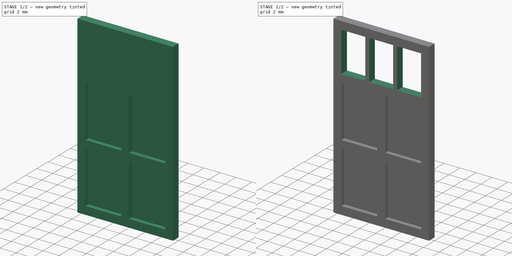
[diagram: build sequence overview — one tinted view per stage of 2, left to right]
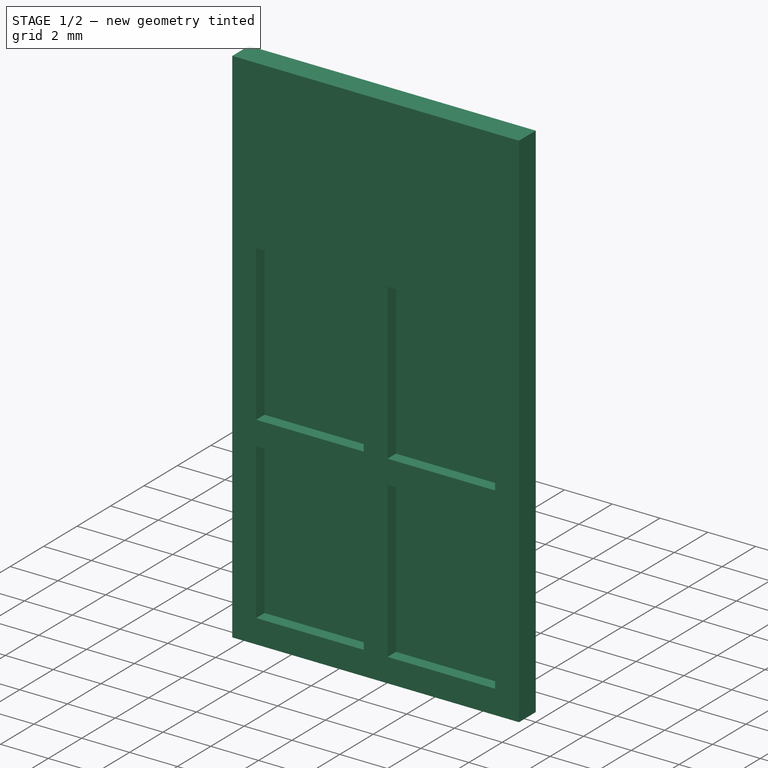
[diagram: stage 1 of 2 — iso view after this stage's code; geometry added in this stage tinted green]
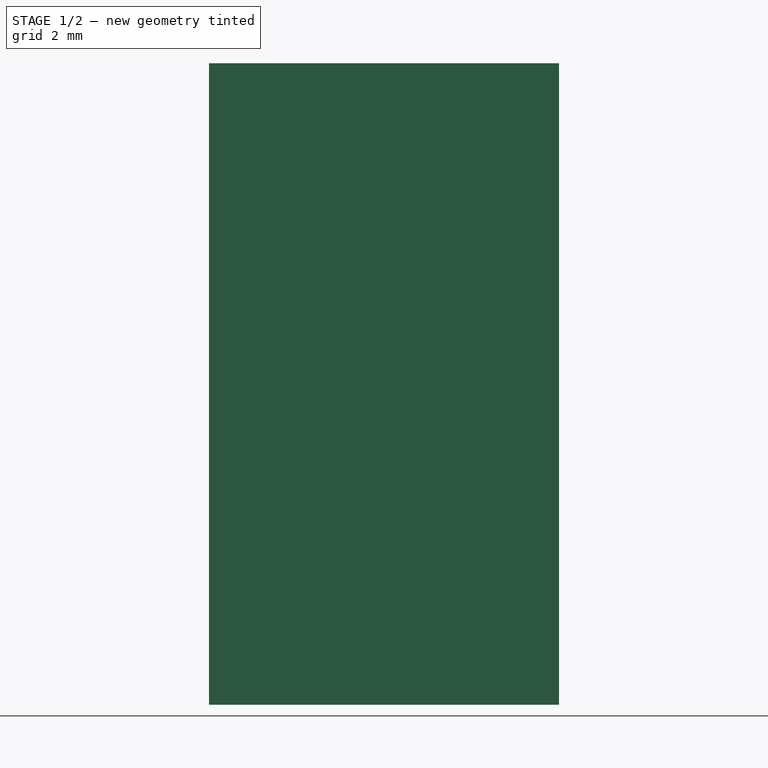
[diagram: stage 1 of 2 — front view after this stage's code; geometry added in this stage tinted green]
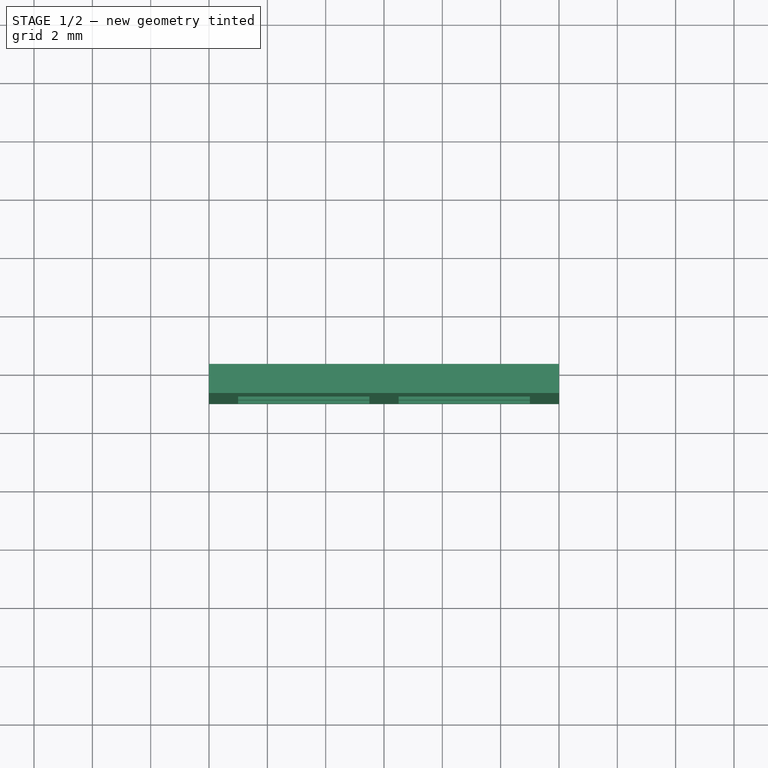
[diagram: stage 1 of 2 — top view after this stage's code; geometry added in this stage tinted green]
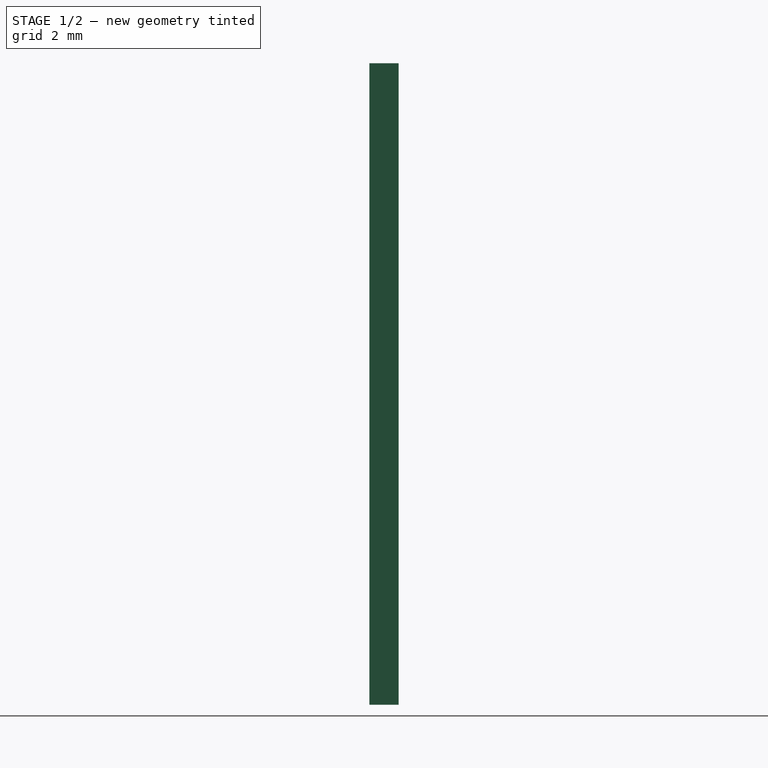
[diagram: stage 1 of 2 — right view after this stage's code; geometry added in this stage tinted green]
FCSTD DOCUMENT  (FreeCAD 0.20R29410 (Git))
Label: doors
License: All rights reserved
LicenseURL: http://en.wikipedia.org/wiki/All_rights_reserved
objects: Sketcher::SketchObject×3, PartDesign::Pocket×2, PartDesign::Pad×1, PartDesign::Body×1
note: 10 computed .brp shape members not serialized (recipe doc carries the construction recipe); baked Part::Feature solids carry a one-line shape summary decoded from their .brp

FEATURE [Sketcher::SketchObject] Sketch
  FullyConstrained = true
  MapMode = 5
  Placement = pos=(0,0,0) rot=(1,0,0;1.5708rad)
  Support = -> [XZ_Plane]
  sketch-geometry (6):
    g0: LineSegment StartX=-6 StartY=11 StartZ=0 EndX=6 EndY=11 EndZ=0
    g1: LineSegment StartX=6 StartY=11 StartZ=0 EndX=6 EndY=-11 EndZ=0
    g2: LineSegment StartX=6 StartY=-11 StartZ=0 EndX=-6 EndY=-11 EndZ=0
    g3: LineSegment StartX=-6 StartY=-11 StartZ=0 EndX=-6 EndY=11 EndZ=0
    g4: GeomPoint X=1e-16 Y=-11 Z=0
    g5: GeomPoint X=6 Y=0 Z=0
  constraints (14):
    c: Coincident(g0,g1)
    c: Coincident(g1,g2)
    c: Coincident(g2,g3)
    c: Coincident(g3,g0)
    c: Horizontal(g0)
    c: Horizontal(g2)
    c: Vertical(g1)
    c: Vertical(g3)
    c: DistanceX(g0,g0) = 12
    c: DistanceY(g3,g3) = 22
    c: PointOnObject(g4,g-2)
    c: PointOnObject(g5,g-1)
    c: Symmetric(g2,g2,g4)
    c: Symmetric(g1,g1,g5)
FEATURE [PartDesign::Pad] Pad
  Direction = (0,-1,2e-16)
  Length = 1
  Length2 = 10
  Placement = pos=(0,0,0) rot=(1,0,0;1.5708rad)
  Profile = -> Sketch
  ReferenceAxis = -> Sketch [N_Axis]
  Type = 0
FEATURE [Sketcher::SketchObject] Sketch001
  ExternalGeometry = -> [Pad]
  FullyConstrained = true
  MapMode = 5
  Placement = pos=(0,-1,2e-16) rot=(1,0,0;1.5708rad)
  Support = -> [Pad]
  sketch-geometry (16):
    g0: LineSegment StartX=-5 StartY=-3.5 StartZ=0 EndX=-0.5 EndY=-3.5 EndZ=0
    g1: LineSegment StartX=-0.5 StartY=-3.5 StartZ=0 EndX=-0.5 EndY=-10 EndZ=0
    g2: LineSegment StartX=-0.5 StartY=-10 StartZ=0 EndX=-5 EndY=-10 EndZ=0
    g3: LineSegment StartX=-5 StartY=-10 StartZ=0 EndX=-5 EndY=-3.5 EndZ=0
    g4: LineSegment StartX=0.5 StartY=-3.5 StartZ=0 EndX=5 EndY=-3.5 EndZ=0
    g5: LineSegment StartX=5 StartY=-3.5 StartZ=0 EndX=5 EndY=-10 EndZ=0
    g6: LineSegment StartX=5 StartY=-10 StartZ=0 EndX=0.5 EndY=-10 EndZ=0
    g7: LineSegment StartX=0.5 StartY=-10 StartZ=0 EndX=0.5 EndY=-3.5 EndZ=0
    g8: LineSegment StartX=-5 StartY=4 StartZ=0 EndX=-0.5 EndY=4 EndZ=0
    g9: LineSegment StartX=-0.5 StartY=4 StartZ=0 EndX=-0.5 EndY=-2.5 EndZ=0
    g10: LineSegment StartX=-0.5 StartY=-2.5 StartZ=0 EndX=-5 EndY=-2.5 EndZ=0
    g11: LineSegment StartX=-5 StartY=-2.5 StartZ=0 EndX=-5 EndY=4 EndZ=0
    g12: LineSegment StartX=0.5 StartY=4 StartZ=0 EndX=5 EndY=4 EndZ=0
    g13: LineSegment StartX=5 StartY=4 StartZ=0 EndX=5 EndY=-2.5 EndZ=0
    g14: LineSegment StartX=5 StartY=-2.5 StartZ=0 EndX=0.5 EndY=-2.5 EndZ=0
    g15: LineSegment StartX=0.5 StartY=-2.5 StartZ=0 EndX=0.5 EndY=4 EndZ=0
  constraints (48):
    c: Coincident(g0,g1)
    c: Coincident(g1,g2)
    c: Coincident(g2,g3)
    c: Coincident(g3,g0)
    c: Horizontal(g0)
    c: Horizontal(g2)
    c: Vertical(g1)
    c: Vertical(g3)
    c: Coincident(g4,g5)
    c: Coincident(g5,g6)
    c: Coincident(g6,g7)
    c: Coincident(g7,g4)
    c: Horizontal(g4)
    c: Horizontal(g6)
    c: Vertical(g5)
    c: Vertical(g7)
    c: Coincident(g8,g9)
    c: Coincident(g9,g10)
    c: Coincident(g10,g11)
    c: Coincident(g11,g8)
    c: Horizontal(g8)
    c: Horizontal(g10)
    c: Vertical(g9)
    c: Vertical(g11)
    c: Coincident(g12,g13)
    c: Coincident(g13,g14)
    c: Coincident(g14,g15)
    c: Coincident(g15,g12)
    c: Horizontal(g12)
    c: Horizontal(g14)
    c: Vertical(g13)
    c: Vertical(g15)
    c: Equal(g11,g3)
    c: Equal(g3,g7)
    c: Equal(g7,g15)
    c: Equal(g8,g12)
    c: Equal(g12,g0)
    c: Equal(g0,g4)
    c: DistanceX(g-6,g2) = 1
    c: DistanceX(g5,g-6) = 1
    c: DistanceY(g0,g10) = 1
    c: DistanceX(g9,g14) = 1
    c: Vertical(g0,g9)
    c: Vertical(g4,g14)
    c: Horizontal(g14,g9)
    c: Horizontal(g4,g0)
    c: DistanceY(g-6,g2) = 1
    c: DistanceY(g8,g-4) = 7
FEATURE [PartDesign::Pocket] Pocket
  BaseFeature = -> Pad
  Direction = (0,1,-2e-16)
  Length = 0.5
  Length2 = 5
  Placement = pos=(0,0,0) rot=(1,0,0;1.5708rad)
  Profile = -> Sketch001
  ReferenceAxis = -> Sketch001 [N_Axis]
  Type = 0
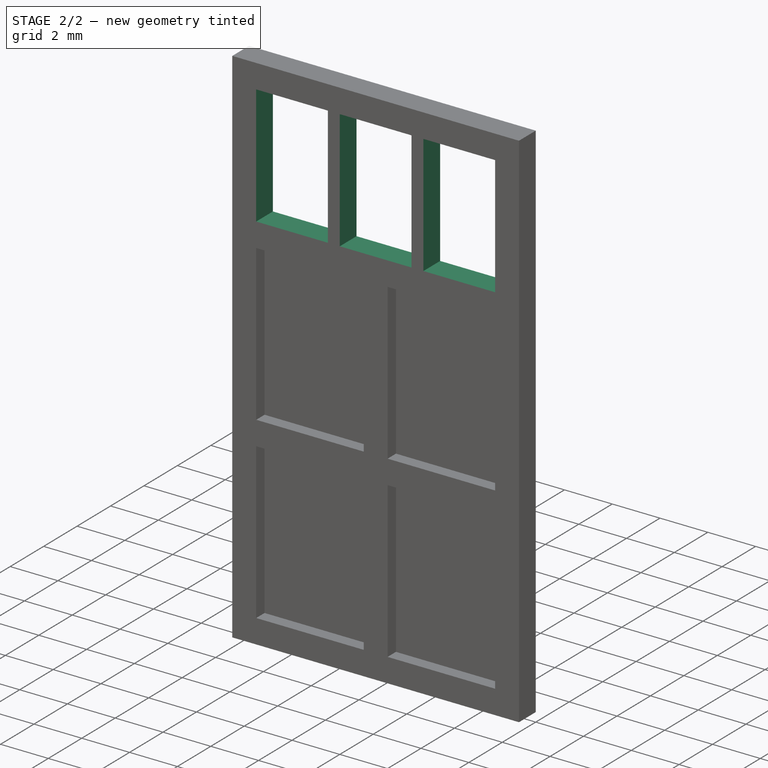
[diagram: stage 2 of 2 — iso view after this stage's code; geometry added in this stage tinted green]
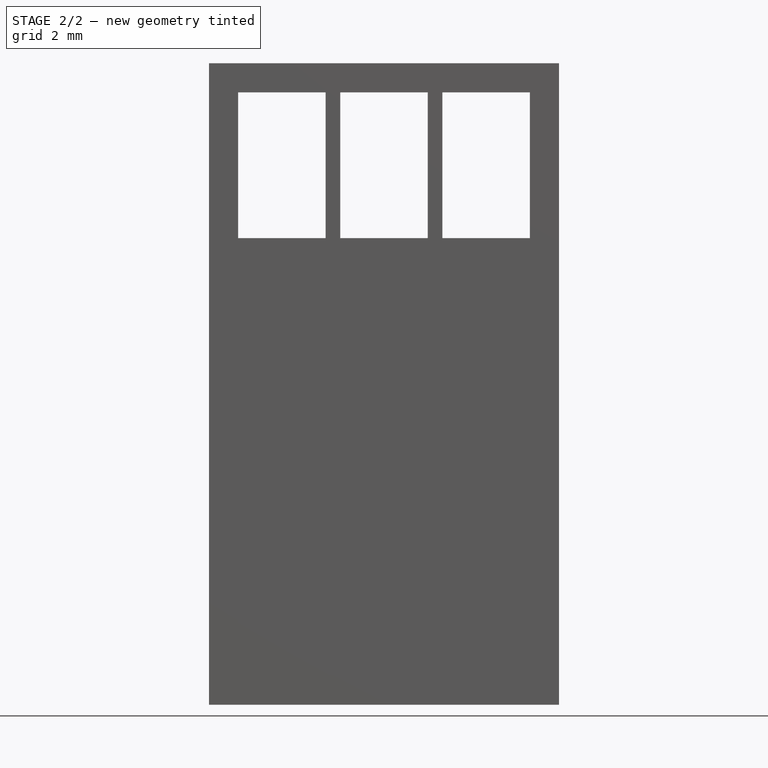
[diagram: stage 2 of 2 — front view after this stage's code; geometry added in this stage tinted green]
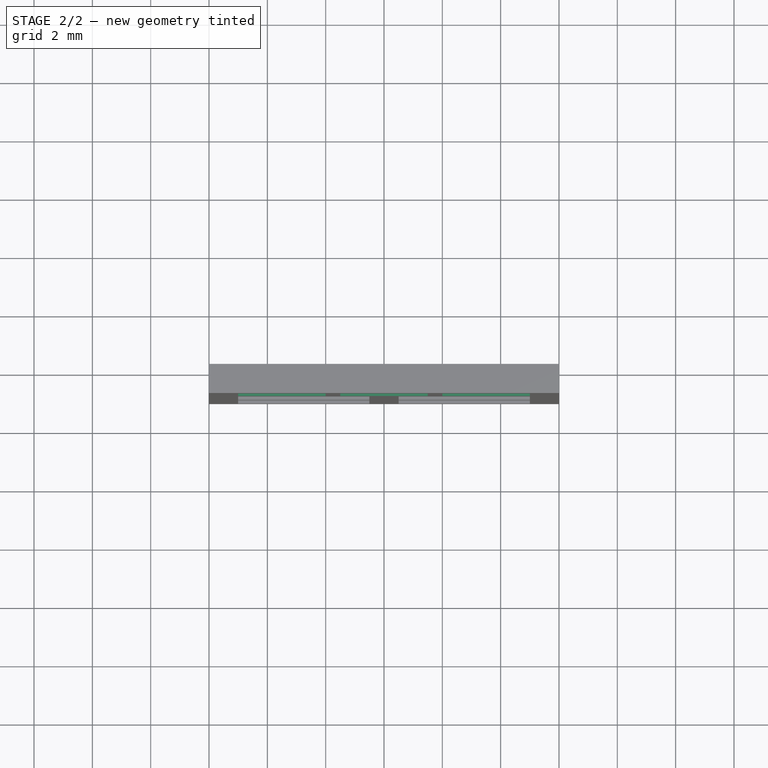
[diagram: stage 2 of 2 — top view after this stage's code; geometry added in this stage tinted green]
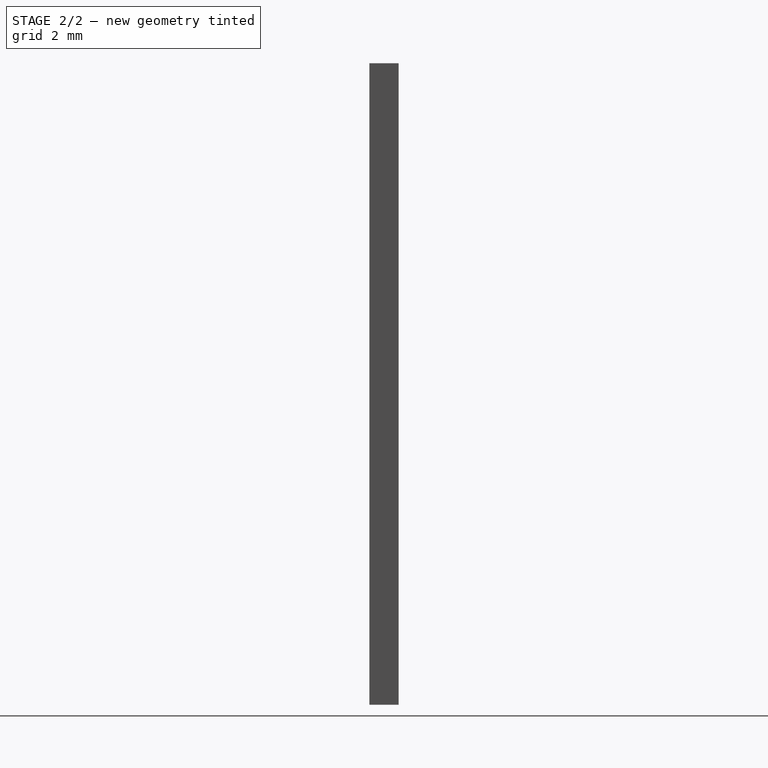
[diagram: stage 2 of 2 — right view after this stage's code; geometry added in this stage tinted green]
FEATURE [Sketcher::SketchObject] Sketch002
  ExternalGeometry = -> [Pocket]
  FullyConstrained = true
  MapMode = 5
  Placement = pos=(0,-1,2e-16) rot=(1,0,0;1.5708rad)
  Support = -> [Pocket]
  sketch-geometry (13):
    g0: LineSegment StartX=-5 StartY=10 StartZ=0 EndX=-2 EndY=10 EndZ=0
    g1: LineSegment StartX=-2 StartY=10 StartZ=0 EndX=-2 EndY=5 EndZ=0
    g2: LineSegment StartX=-2 StartY=5 StartZ=0 EndX=-5 EndY=5 EndZ=0
    g3: LineSegment StartX=-5 StartY=5 StartZ=0 EndX=-5 EndY=10 EndZ=0
    g4: LineSegment StartX=-1.5 StartY=10 StartZ=0 EndX=1.5 EndY=10 EndZ=0
    g5: LineSegment StartX=1.5 StartY=10 StartZ=0 EndX=1.5 EndY=5 EndZ=0
    g6: LineSegment StartX=1.5 StartY=5 StartZ=0 EndX=-1.5 EndY=5 EndZ=0
    g7: LineSegment StartX=-1.5 StartY=5 StartZ=0 EndX=-1.5 EndY=10 EndZ=0
    g8: LineSegment StartX=2 StartY=10 StartZ=0 EndX=5 EndY=10 EndZ=0
    g9: LineSegment StartX=5 StartY=10 StartZ=0 EndX=5 EndY=5 EndZ=0
    g10: LineSegment StartX=5 StartY=5 StartZ=0 EndX=2 EndY=5 EndZ=0
    g11: LineSegment StartX=2 StartY=5 StartZ=0 EndX=2 EndY=10 EndZ=0
    g12: GeomPoint X=0 Y=10 Z=0
  constraints (37):
    c: Coincident(g0,g1)
    c: Coincident(g1,g2)
    c: Coincident(g2,g3)
    c: Coincident(g3,g0)
    c: Horizontal(g0)
    c: Horizontal(g2)
    c: Vertical(g1)
    c: Vertical(g3)
    c: Coincident(g4,g5)
    c: Coincident(g5,g6)
    c: Coincident(g6,g7)
    c: Coincident(g7,g4)
    c: Horizontal(g4)
    c: Horizontal(g6)
    c: Vertical(g5)
    c: Vertical(g7)
    c: Coincident(g8,g9)
    c: Coincident(g9,g10)
    c: Coincident(g10,g11)
    c: Coincident(g11,g8)
    c: Horizontal(g8)
    c: Horizontal(g10)
    c: Vertical(g9)
    c: Vertical(g11)
    c: Equal(g3,g7)
    c: Equal(g7,g11)
    c: Horizontal(g0,g4)
    c: Horizontal(g8,g4)
    c: DistanceX(g0,g4) = 0.5
    c: DistanceY(g0,g-3) = 1
    c: DistanceX(g-3,g0) = 1
    c: DistanceY(g-4,g2) = 1
    c: Vertical(g9,g-5)
    c: PointOnObject(g12,g-2)
    c: Equal(g0,g4)
    c: Equal(g0,g8)
    c: Symmetric(g4,g4,g12)
FEATURE [PartDesign::Pocket] Pocket001  label="small door"
  BaseFeature = -> Pocket
  Direction = (0,1,-2e-16)
  Length = 5
  Length2 = 5
  Placement = pos=(0,0,0) rot=(1,0,0;1.5708rad)
  Profile = -> Sketch002
  ReferenceAxis = -> Sketch002 [N_Axis]
  Type = 0
FEATURE [PartDesign::Body] Body
  Group = -> [Sketch,Pad,Sketch001,Pocket,Sketch002,Pocket001]
  Origin = -> Origin
  Tip = -> Pocket001
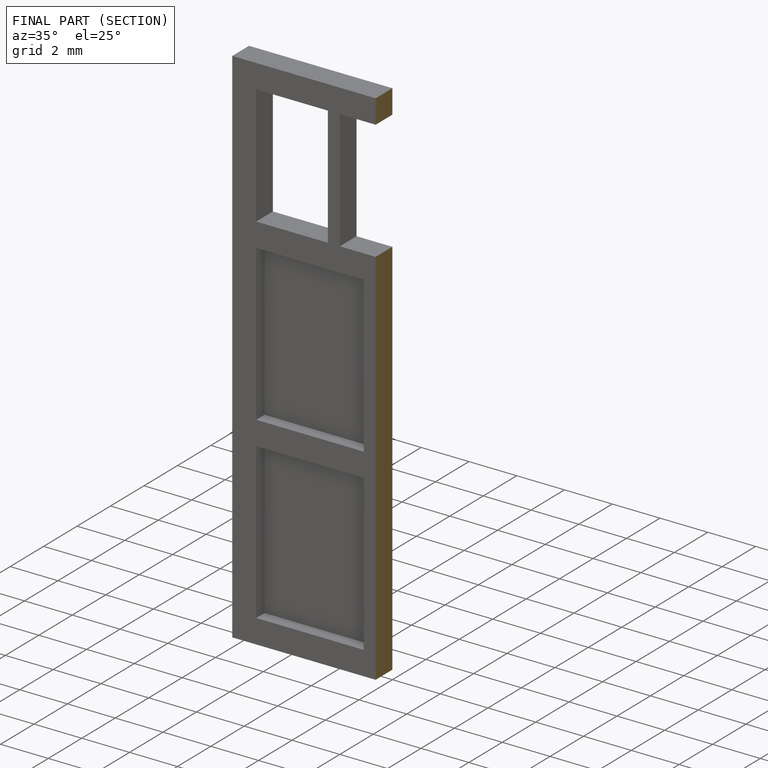
[diagram: finished part — half-section view (interior)]
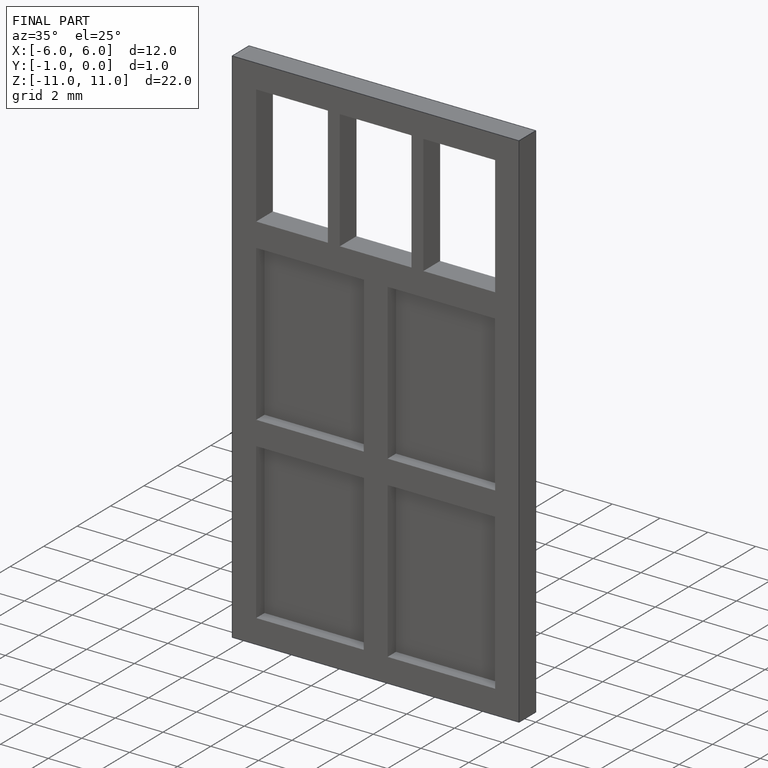
[diagram: finished part — iso view with bounding-box wireframe]
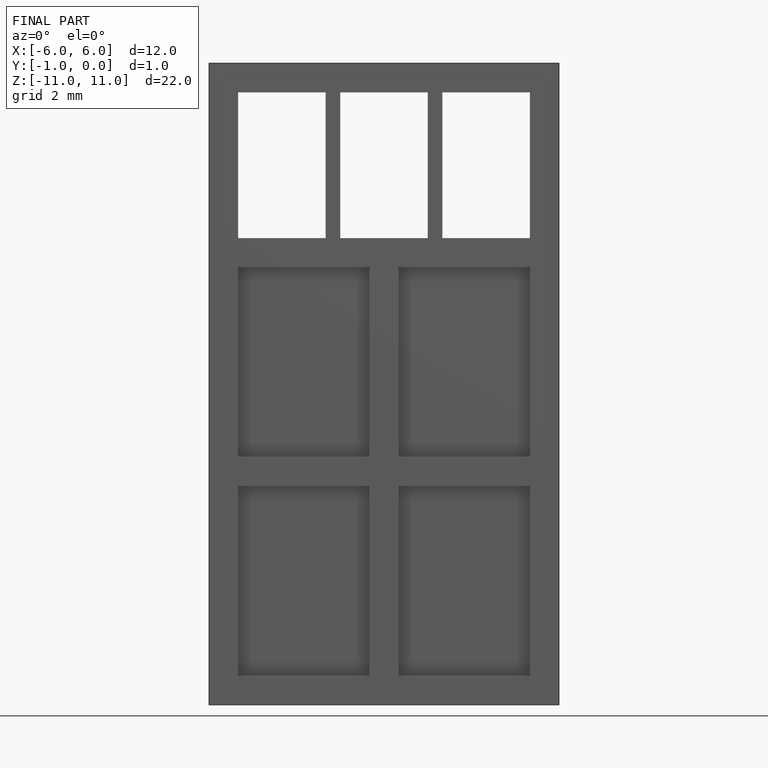
[diagram: finished part — front view with bounding-box wireframe]
